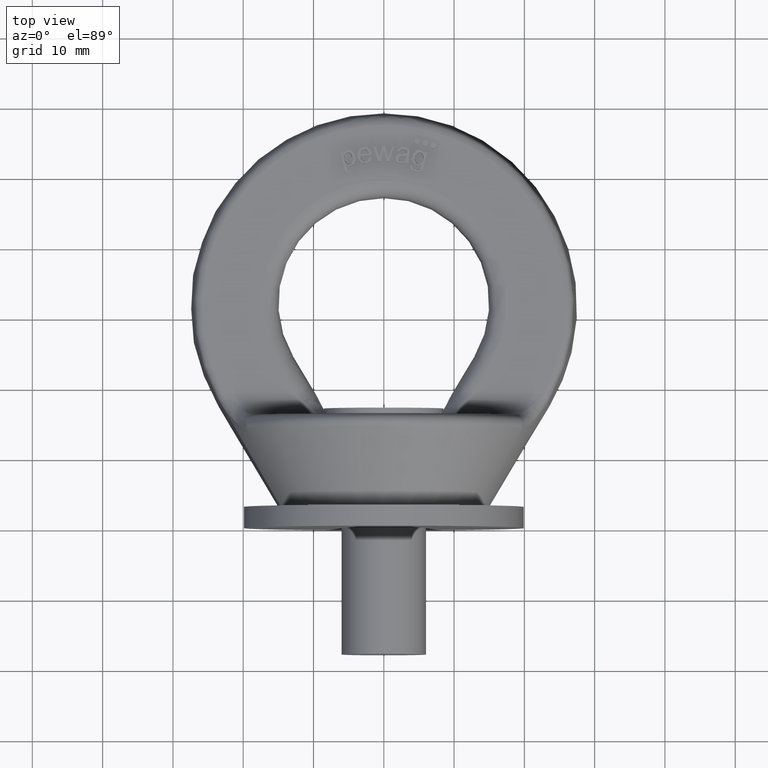
[diagram: clean part render]
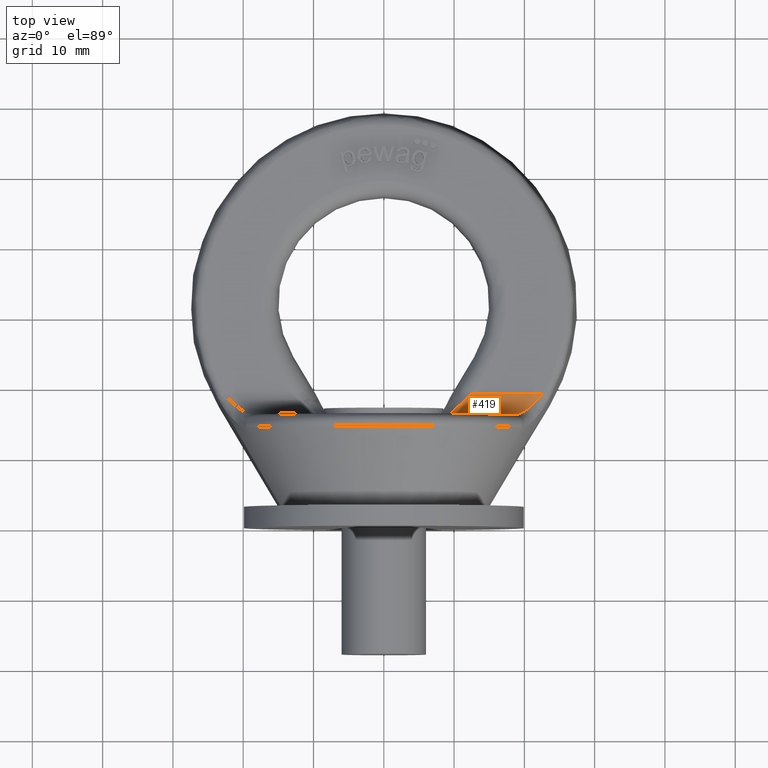
[diagram: same view with one face highlighted and labeled with its STEP entity id]
A machine part, top view. The second image highlights one B-rep face of the part: STEP entity #419.
In plain terms, the highlighted cylindrical surface (edge-blend (fillet) strip) has radius 3 mm, axis along (-1, -0, 0).
Its self-contained STEP definition (entity closure, byte-faithful):
#222=ELLIPSE('',#3381,4.40740772671821,3.);
#228=CYLINDRICAL_SURFACE('',#3382,3.);
#252=FACE_OUTER_BOUND('',#830,.T.);
#419=ADVANCED_FACE('',(#252),#228,.F.);
#830=EDGE_LOOP('',(#1574,#1575,#1576,#1577,#1578));
#1050=LINE('',#4302,#1242);
#1061=LINE('',#4430,#1253);
#1242=VECTOR('',#3556,1.);
#1253=VECTOR('',#3575,1.);
#1574=ORIENTED_EDGE('',*,*,#2689,.F.);
#1575=ORIENTED_EDGE('',*,*,#2749,.T.);
#1576=ORIENTED_EDGE('',*,*,#2712,.F.);
#1577=ORIENTED_EDGE('',*,*,#2750,.T.);
#1578=ORIENTED_EDGE('',*,*,#2751,.T.);
#2393=VERTEX_POINT('',#4301);
#2394=VERTEX_POINT('',#4303);
#2416=VERTEX_POINT('',#4429);
#2417=VERTEX_POINT('',#4431);
#2447=VERTEX_POINT('',#4554);
#2689=EDGE_CURVE('',#2393,#2394,#1050,.T.);
#2712=EDGE_CURVE('',#2416,#2417,#1061,.T.);
#2749=EDGE_CURVE('',#2393,#2417,#222,.T.);
#2750=EDGE_CURVE('',#2416,#2447,#3132,.T.);
#2751=EDGE_CURVE('',#2447,#2394,#3133,.T.);
#3132=B_SPLINE_CURVE_WITH_KNOTS('',3,(#4541,#4542,#4543,#4544,#4545,#4546,
#4547,#4548,#4549,#4550,#4551,#4552,#4553),.UNSPECIFIED.,.F.,.F.,(4,3,3,
3,4),(0.,0.269192637887795,0.54240525119242,0.841931633782776,1.),
 .UNSPECIFIED.);
#3133=B_SPLINE_CURVE_WITH_KNOTS('',3,(#4555,#4556,#4557,#4558),
 .UNSPECIFIED.,.F.,.F.,(4,4),(0.,1.),.UNSPECIFIED.);
#3381=AXIS2_PLACEMENT_3D('',#4540,#3640,#3641);
#3382=AXIS2_PLACEMENT_3D('',#4559,#3642,#3643);
#3556=DIRECTION('',(1.,4.38613491528481E-16,-5.02463381551158E-32));
#3575=DIRECTION('',(-1.,-4.38613491528481E-16,5.02463381551158E-32));
#3640=DIRECTION('',(-0.680672219593766,0.732588103557037,-2.73610292148013E-32));
#3641=DIRECTION('',(-0.732588103557037,-0.680672219593766,0.));
#3642=DIRECTION('',(-1.,-4.38613491528481E-16,5.02463381551158E-32));
#3643=DIRECTION('',(5.78241158658936E-16,-1.,0.));
#4301=CARTESIAN_POINT('',(12.5001206894794,19.,6.00000000000001));
#4302=CARTESIAN_POINT('',(55.,19.,6.00000000000001));
#4303=CARTESIAN_POINT('',(22.6362541070735,19.,6.00000000000001));
#4429=CARTESIAN_POINT('',(18.5937741275878,16.,9.00000000000001));
#4430=CARTESIAN_POINT('',(-7.91003245217853,16.,9.00000000000001));
#4431=CARTESIAN_POINT('',(9.27130622136025,16.,9.00000000000001));
#4540=CARTESIAN_POINT('',(12.5001206894794,19.,9.00000000000001));
#4541=CARTESIAN_POINT('',(18.5937741275878,16.,9.00000000000001));
#4542=CARTESIAN_POINT('',(18.8578496384092,16.,8.61030473009208));
#4543=CARTESIAN_POINT('',(19.151910421851,16.0764627645108,8.23557931463249));
#4544=CARTESIAN_POINT('',(19.4522258015678,16.2095742054464,7.89839939856132));
#4545=CARTESIAN_POINT('',(19.757542544982,16.3449024450323,7.55560418768475));
#4546=CARTESIAN_POINT('',(20.0768590849886,16.5418422915087,7.24393876107569));
#4547=CARTESIAN_POINT('',(20.3974058181973,16.780999168939,6.98108065744303));
#4548=CARTESIAN_POINT('',(20.7484657126441,17.0429216265678,6.69320083039867));
#4549=CARTESIAN_POINT('',(21.1086584583748,17.3607804745772,6.45811280086784));
#4550=CARTESIAN_POINT('',(21.4643128305946,17.7082710837275,6.29233746436794));
#4551=CARTESIAN_POINT('',(21.6533738006279,17.8929923096564,6.20421357675581));
#4552=CARTESIAN_POINT('',(21.8427158377704,18.0875285892756,6.13469533066831));
#4553=CARTESIAN_POINT('',(22.0299506576705,18.2879695935804,6.085722610949));
#4554=CARTESIAN_POINT('',(22.0299506576705,18.2879695935804,6.085722610949));
#4555=CARTESIAN_POINT('',(22.0299506576705,18.2879695935804,6.085722610949));
#4556=CARTESIAN_POINT('',(22.2403115176208,18.5131677808478,6.03070109604194));
#4557=CARTESIAN_POINT('',(22.4447901337077,18.7523413055167,6.00000000000001));
#4558=CARTESIAN_POINT('',(22.6362541070735,19.,6.00000000000001));
#4559=CARTESIAN_POINT('',(-7.91003245217853,19.,9.00000000000001));